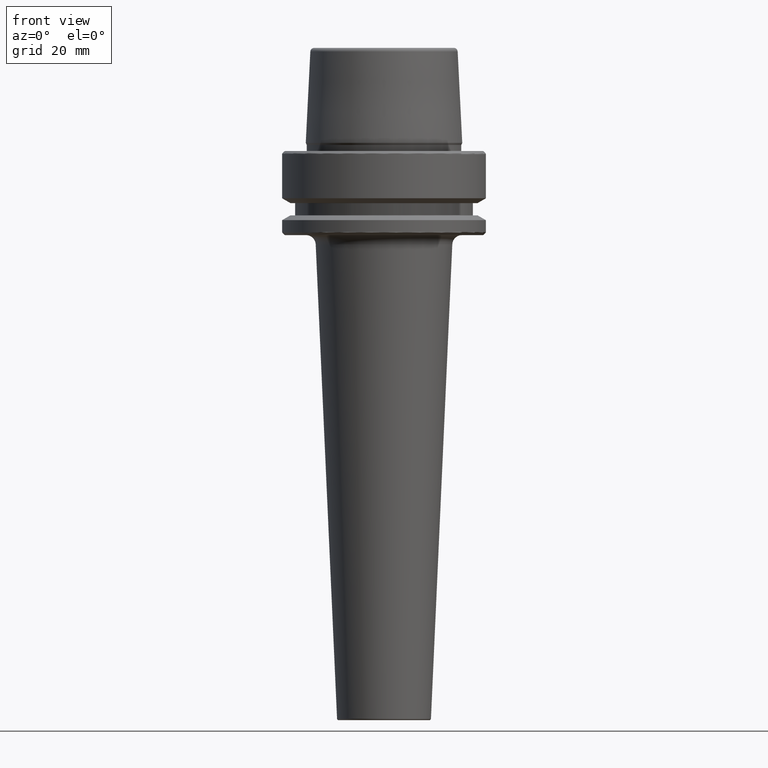
[diagram: clean part render]
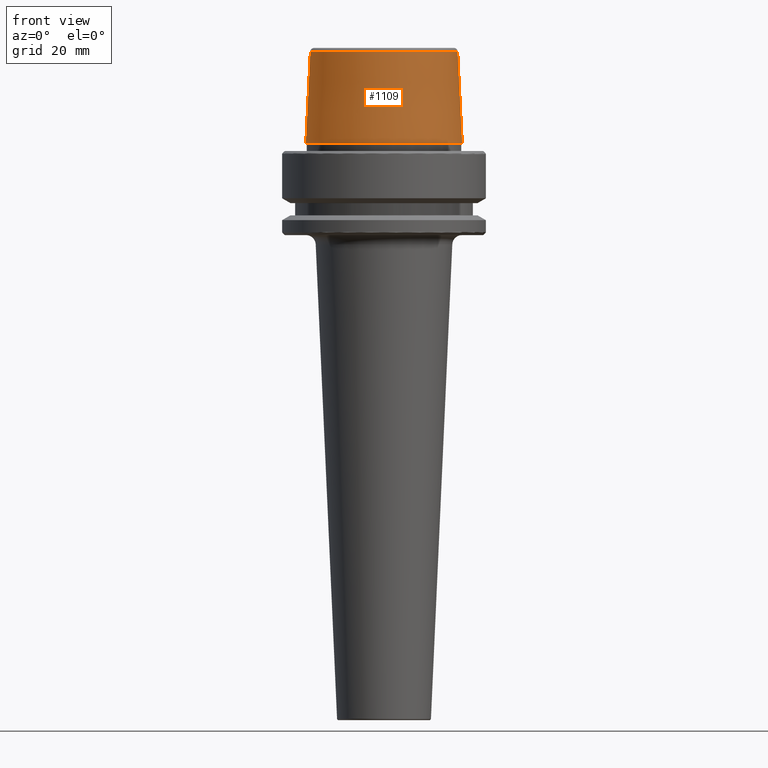
[diagram: same view with one face highlighted and labeled with its STEP entity id]
A machine part, front view. The second image highlights one B-rep face of the part: STEP entity #1109.
In plain terms, the highlighted conical surface has half-angle 2.868 deg.
Its self-contained STEP definition (entity closure, byte-faithful):
#9 = CIRCLE ( 'NONE', #235, 22.77957961851797100 ) ;
#13 = ORIENTED_EDGE ( 'NONE', *, *, #400, .T. ) ;
#32 = EDGE_CURVE ( 'NONE', #461, #140, #9, .T. ) ;
#140 = VERTEX_POINT ( 'NONE', #460 ) ;
#220 = LINE ( 'NONE', #1165, #466 ) ;
#235 = AXIS2_PLACEMENT_3D ( 'NONE', #297, #494, #950 ) ;
#238 = VERTEX_POINT ( 'NONE', #1079 ) ;
#270 = EDGE_LOOP ( 'NONE', ( #1052, #1082, #13, #720 ) ) ;
#297 = CARTESIAN_POINT ( 'NONE',  ( 0.0000000000000000000, 0.0000000000000000000, 30.76004333261571900 ) ) ;
#387 = DIRECTION ( 'NONE',  ( 0.05003611051310804400, 6.127656258166099700E-018, -0.9987474093306675200 ) ) ;
#396 = CARTESIAN_POINT ( 'NONE',  ( -24.19537568275369200, 2.963078938405201500E-015, 2.500000000000002200 ) ) ;
#400 = EDGE_CURVE ( 'NONE', #461, #818, #1139, .T. ) ;
#404 = CARTESIAN_POINT ( 'NONE',  ( -24.19537568275369200, 0.0000000000000000000, 2.500000000000002200 ) ) ;
#406 = EDGE_CURVE ( 'NONE', #818, #238, #1108, .T. ) ;
#460 = CARTESIAN_POINT ( 'NONE',  ( 22.77957961851797100, 2.876386432489616700E-015, 30.76004333261571900 ) ) ;
#461 = VERTEX_POINT ( 'NONE', #1219 ) ;
#466 = VECTOR ( 'NONE', #387, 1000.000000000000200 ) ;
#494 = DIRECTION ( 'NONE',  ( -0.0000000000000000000, -0.0000000000000000000, 1.000000000000000000 ) ) ;
#507 = CARTESIAN_POINT ( 'NONE',  ( 0.0000000000000000000, 0.0000000000000000000, 2.500000000000002200 ) ) ;
#518 = DIRECTION ( 'NONE',  ( 1.000000000000000000, 0.0000000000000000000, 0.0000000000000000000 ) ) ;
#539 = AXIS2_PLACEMENT_3D ( 'NONE', #507, #1181, #599 ) ;
#599 = DIRECTION ( 'NONE',  ( -1.000000000000000000, 0.0000000000000000000, 0.0000000000000000000 ) ) ;
#640 = AXIS2_PLACEMENT_3D ( 'NONE', #737, #932, #518 ) ;
#644 = CONICAL_SURFACE ( 'NONE', #539, 24.19537568275369200, 0.05005701257455997400 ) ;
#720 = ORIENTED_EDGE ( 'NONE', *, *, #406, .T. ) ;
#724 = DIRECTION ( 'NONE',  ( -0.05003611051310804400, 0.0000000000000000000, -0.9987474093306675200 ) ) ;
#737 = CARTESIAN_POINT ( 'NONE',  ( 0.0000000000000000000, 0.0000000000000000000, 2.500000000000002200 ) ) ;
#799 = EDGE_CURVE ( 'NONE', #140, #238, #220, .T. ) ;
#818 = VERTEX_POINT ( 'NONE', #396 ) ;
#932 = DIRECTION ( 'NONE',  ( -0.0000000000000000000, -0.0000000000000000000, 1.000000000000000000 ) ) ;
#950 = DIRECTION ( 'NONE',  ( 1.000000000000000000, 0.0000000000000000000, 0.0000000000000000000 ) ) ;
#973 = VECTOR ( 'NONE', #724, 1000.000000000000200 ) ;
#1012 = FACE_OUTER_BOUND ( 'NONE', #270, .T. ) ;
#1052 = ORIENTED_EDGE ( 'NONE', *, *, #799, .F. ) ;
#1079 = CARTESIAN_POINT ( 'NONE',  ( 24.19537568275369200, 0.0000000000000000000, 2.500000000000002200 ) ) ;
#1082 = ORIENTED_EDGE ( 'NONE', *, *, #32, .F. ) ;
#1108 = CIRCLE ( 'NONE', #640, 24.19537568275369200 ) ;
#1109 = ADVANCED_FACE ( 'NONE', ( #1012 ), #644, .T. ) ;
#1139 = LINE ( 'NONE', #404, #973 ) ;
#1165 = CARTESIAN_POINT ( 'NONE',  ( 24.19537568275369200, 2.963078938405201500E-015, 2.500000000000002200 ) ) ;
#1181 = DIRECTION ( 'NONE',  ( 0.0000000000000000000, 0.0000000000000000000, -1.000000000000000000 ) ) ;
#1219 = CARTESIAN_POINT ( 'NONE',  ( -22.77957961851797100, 0.0000000000000000000, 30.76004333261571900 ) ) ;